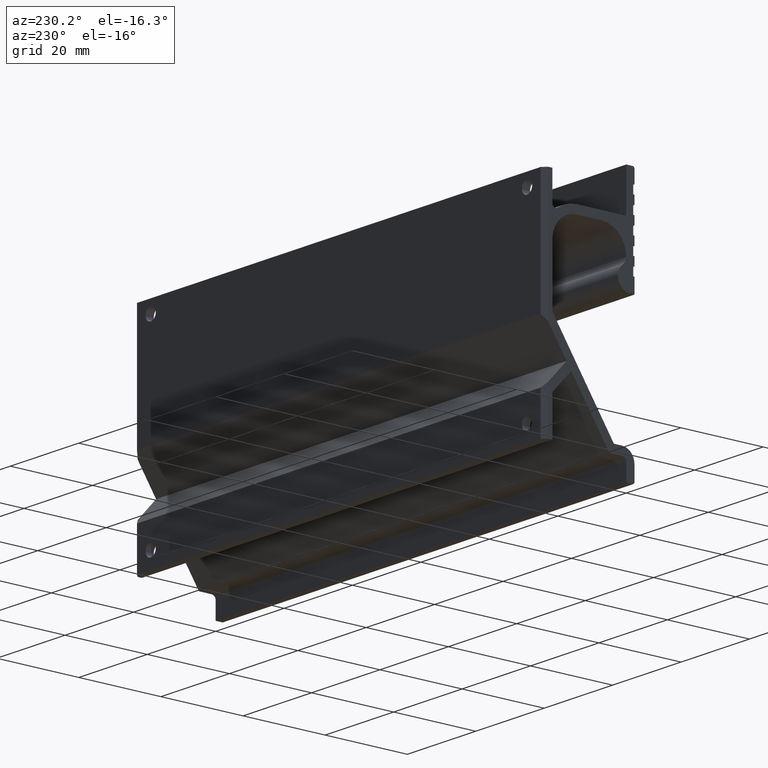
[diagram: clean part render]
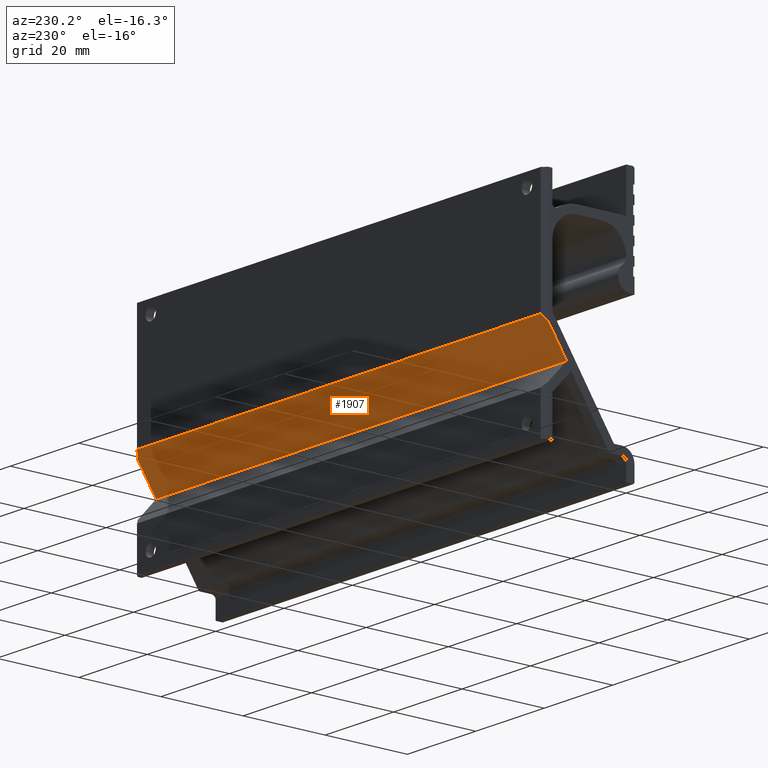
[diagram: same view with one face highlighted and labeled with its STEP entity id]
A machine part, auxiliary view. The second image highlights one B-rep face of the part: STEP entity #1907.
In plain terms, the highlighted face is a freeform B-spline surface patch.
Its self-contained STEP definition (entity closure, byte-faithful):
#777=CARTESIAN_POINT('',(-60.0,18.999999999999702,27.872124824764452));
#778=VERTEX_POINT('',#777);
#779=CARTESIAN_POINT('',(-59.0,20.0,29.405457999999950));
#780=VERTEX_POINT('',#779);
#781=CARTESIAN_POINT('',(-60.0,18.999999999999702,27.872124824764452));
#782=CARTESIAN_POINT('',(-59.0,20.0,29.405457999999950));
#783=QUASI_UNIFORM_CURVE('',1,(#781,#782),.UNSPECIFIED.,.F.,.U.);
#784=EDGE_CURVE('',#778,#780,#783,.T.);
#885=CARTESIAN_POINT('',(59.0,20.0,29.405457999999900));
#886=VERTEX_POINT('',#885);
#887=CARTESIAN_POINT('',(60.0,19.0,27.872124824765098));
#888=VERTEX_POINT('',#887);
#889=CARTESIAN_POINT('',(59.0,20.0,29.405457999999900));
#890=CARTESIAN_POINT('',(60.0,19.0,27.872124824765098));
#891=QUASI_UNIFORM_CURVE('',1,(#889,#890),.UNSPECIFIED.,.F.,.U.);
#892=EDGE_CURVE('',#886,#888,#891,.T.);
#921=CARTESIAN_POINT('',(60.0,14.518179000000000,21.0));
#922=VERTEX_POINT('',#921);
#923=CARTESIAN_POINT('',(60.0,14.518179000000000,21.0));
#924=CARTESIAN_POINT('',(60.0,19.0,27.872124824765098));
#925=QUASI_UNIFORM_CURVE('',1,(#923,#924),.UNSPECIFIED.,.F.,.U.);
#926=EDGE_CURVE('',#922,#888,#925,.T.);
#1352=CARTESIAN_POINT('',(-60.0,14.518179000000000,21.0));
#1353=VERTEX_POINT('',#1352);
#1770=CARTESIAN_POINT('',(-60.0,14.518179000000000,21.0));
#1771=CARTESIAN_POINT('',(-60.0,18.999999999999702,27.872124824764452));
#1772=QUASI_UNIFORM_CURVE('',1,(#1770,#1771),.UNSPECIFIED.,.F.,.U.);
#1773=EDGE_CURVE('',#1353,#778,#1772,.T.);
#1886=CARTESIAN_POINT('',(-65.993999767416710,14.244362000215419,20.580147310286979));
#1887=CARTESIAN_POINT('',(-65.993999767416710,20.273817097807139,29.825310840014289));
#1888=CARTESIAN_POINT('',(65.994002986067542,14.244362000215419,20.580147310286979));
#1889=CARTESIAN_POINT('',(65.994002986067542,20.273817097807139,29.825310840014289));
#1890=B_SPLINE_SURFACE_WITH_KNOTS('',1,1,((#1886,#1888),(#1887,#1889)),.UNSPECIFIED.,.F.,.F.,.U.,(2,2),(2,2),(0.0,11.037543996074250),(0.0,131.988002753484210),.UNSPECIFIED.);
#1891=CARTESIAN_POINT('',(-59.0,20.0,29.405457999999950));
#1892=CARTESIAN_POINT('',(59.0,20.0,29.405457999999900));
#1893=QUASI_UNIFORM_CURVE('',1,(#1891,#1892),.UNSPECIFIED.,.F.,.U.);
#1894=EDGE_CURVE('',#780,#886,#1893,.T.);
#1895=ORIENTED_EDGE('',*,*,#1894,.T.);
#1896=ORIENTED_EDGE('',*,*,#892,.T.);
#1897=ORIENTED_EDGE('',*,*,#926,.F.);
#1898=CARTESIAN_POINT('',(-60.0,14.518179000000000,21.0));
#1899=CARTESIAN_POINT('',(60.0,14.518179000000000,21.0));
#1900=QUASI_UNIFORM_CURVE('',1,(#1898,#1899),.UNSPECIFIED.,.F.,.U.);
#1901=EDGE_CURVE('',#1353,#922,#1900,.T.);
#1902=ORIENTED_EDGE('',*,*,#1901,.F.);
#1903=ORIENTED_EDGE('',*,*,#1773,.T.);
#1904=ORIENTED_EDGE('',*,*,#784,.T.);
#1905=EDGE_LOOP('',(#1895,#1896,#1897,#1902,#1903,#1904));
#1906=FACE_OUTER_BOUND('',#1905,.T.);
#1907=ADVANCED_FACE('',(#1906),#1890,.T.);